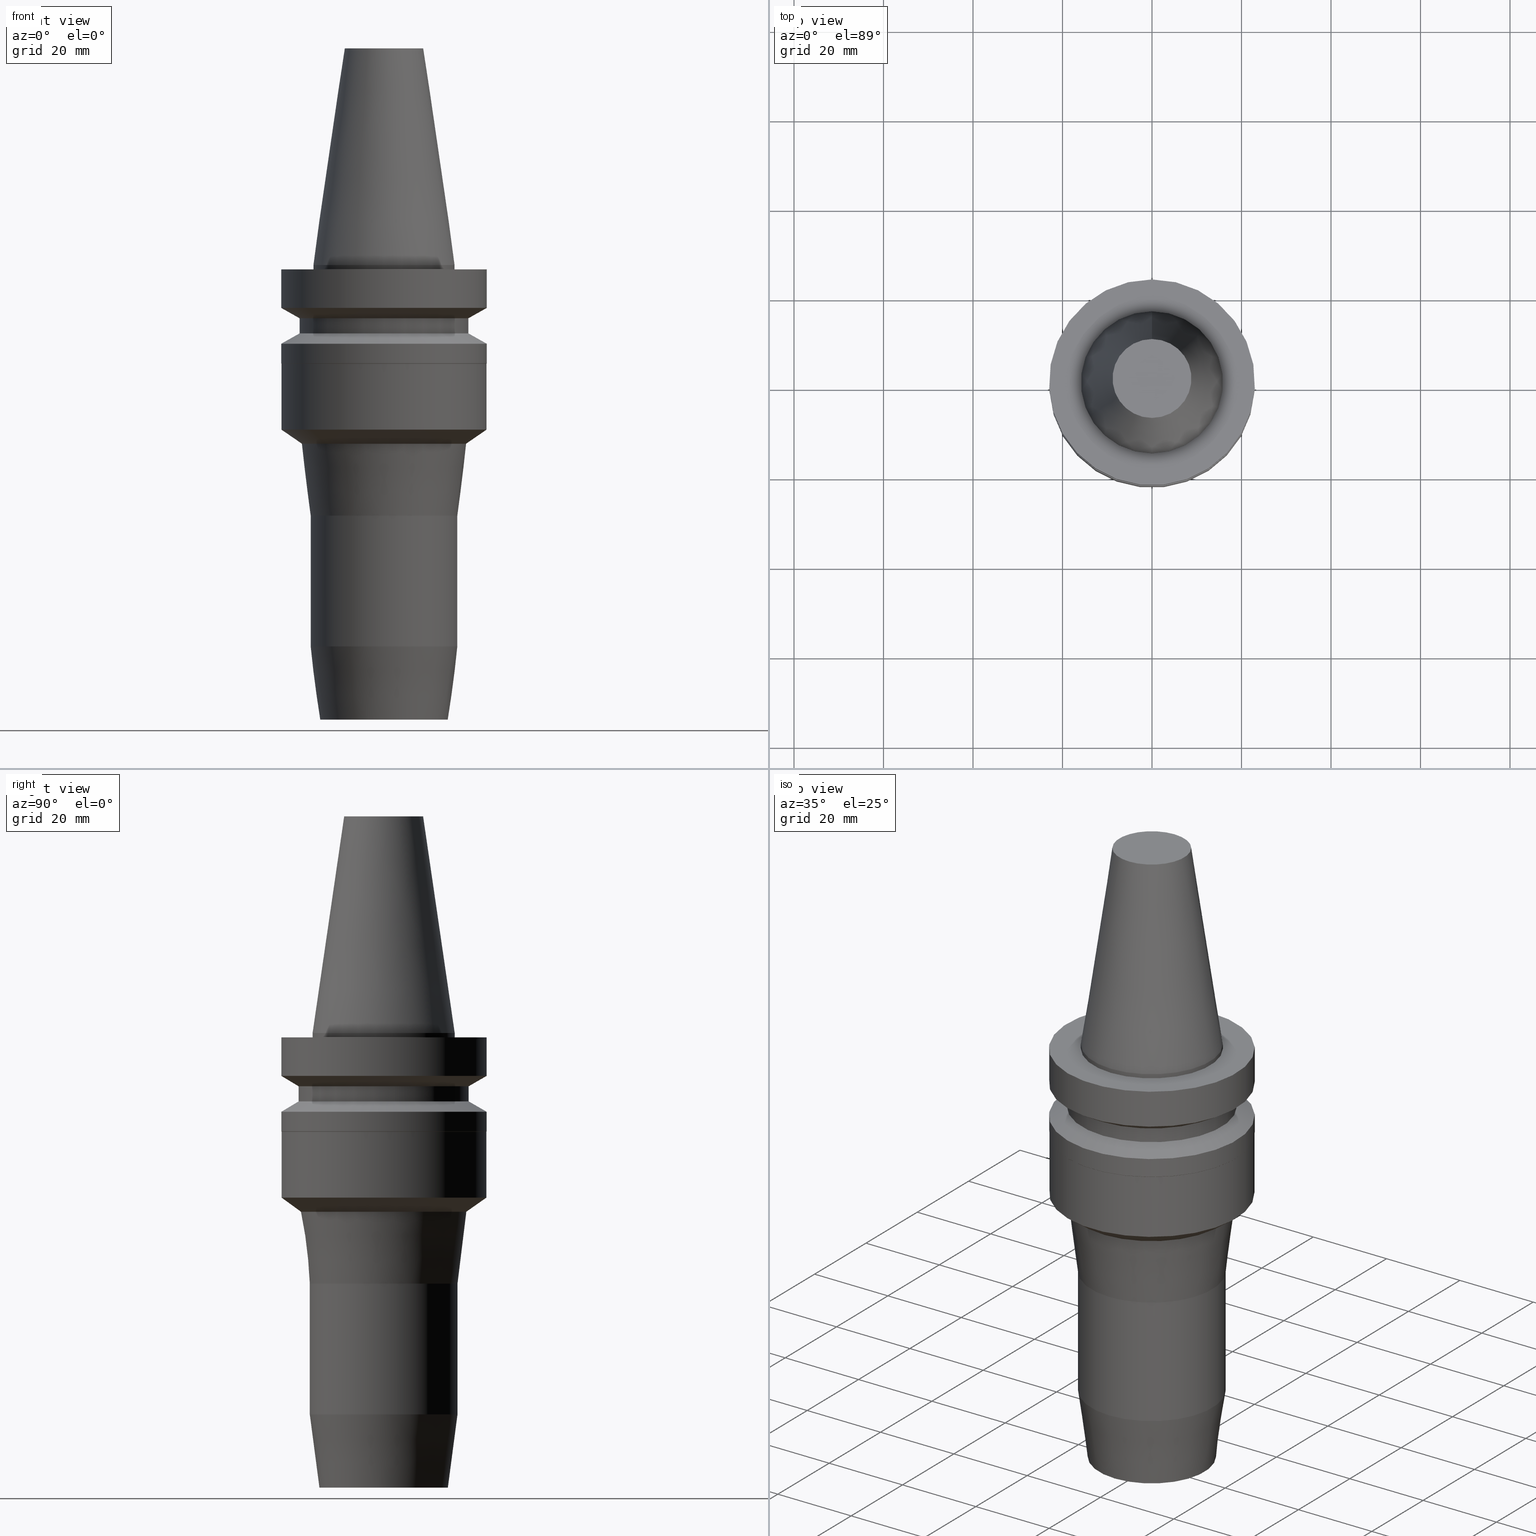
[diagram: canonical four-view strip — front | top / right | iso, engineering-drawing reading convention]
A machine part, canonical four-view strip (front | top / right | iso — engineering-drawing reading convention). The complete STEP part file that produces these views, byte-faithful:
ISO-10303-21;
HEADER;
FILE_DESCRIPTION((''),'1');
FILE_NAME('V:/90_\X2\53D65F9730C730FC30BF\X0\/00_\X2\6DE18DEF30C730FC30BF\X0\/ALL/BBT-BKUS\X2\FF76FF80FF9BFF78FF9E752852A05DE556F3\X0\201801/BBT30-HDC/BBT30-HDC.500-4.stp','2018-02-07T04:33:35',(''),(''),'Spatial Interop R21 SP3','Kubotek KeyCreator 2011 V10.0.2 (22737)',' ');
FILE_SCHEMA(('automotive_design'));
ENDSEC;
DATA;
#1=MECHANICAL_DESIGN_GEOMETRIC_PRESENTATION_REPRESENTATION(' ',(#10,#11,#12,#13,#14,#15,#16,#17,#18,#19,#20,#21,#22,#23,#24,#25,#26,#27,#28,#29,#30,#31,#32,#33,#34,#35,#36,#37,#38,#39,#40,#41),#6);
#2=PRODUCT_DEFINITION_CONTEXT('',#42,'design');
#3=APPLICATION_PROTOCOL_DEFINITION('INTERNATIONAL STANDARD','automotive_design',1994,#42);
#4=PRODUCT_CATEGORY_RELATIONSHIP('NONE','NONE',#43,#44);
#5=SHAPE_DEFINITION_REPRESENTATION(#45,#46);
#6= (GEOMETRIC_REPRESENTATION_CONTEXT(3)GLOBAL_UNCERTAINTY_ASSIGNED_CONTEXT((#49))GLOBAL_UNIT_ASSIGNED_CONTEXT((#51,#52,#53))REPRESENTATION_CONTEXT('NONE','WORKSPACE'));
#10=STYLED_ITEM('',(#55),#56);
#11=STYLED_ITEM('',(#57),#58);
#12=STYLED_ITEM('',(#59),#60);
#13=STYLED_ITEM('',(#61,#62),#63);
#14=STYLED_ITEM('',(#64),#65);
#15=STYLED_ITEM('',(#66),#67);
#16=STYLED_ITEM('',(#68),#69);
#17=STYLED_ITEM('',(#70,#71),#72);
#18=STYLED_ITEM('',(#73,#74),#75);
#19=STYLED_ITEM('',(#76),#77);
#20=STYLED_ITEM('',(#78,#79),#80);
#21=STYLED_ITEM('',(#81),#82);
#22=STYLED_ITEM('',(#83,#84),#85);
#23=STYLED_ITEM('',(#86),#87);
#24=STYLED_ITEM('',(#88,#89),#90);
#25=STYLED_ITEM('',(#91),#92);
#26=STYLED_ITEM('',(#93,#94),#95);
#27=STYLED_ITEM('',(#96,#97),#98);
#28=STYLED_ITEM('',(#99,#100),#101);
#29=STYLED_ITEM('',(#102),#103);
#30=STYLED_ITEM('',(#104,#105),#106);
#31=STYLED_ITEM('',(#107,#108),#109);
#32=STYLED_ITEM('',(#110),#111);
#33=STYLED_ITEM('',(#112,#113),#114);
#34=STYLED_ITEM('',(#115),#116);
#35=STYLED_ITEM('',(#117,#118),#119);
#36=STYLED_ITEM('',(#120),#121);
#37=STYLED_ITEM('',(#122),#123);
#38=STYLED_ITEM('',(#124,#125),#126);
#39=STYLED_ITEM('',(#127,#128),#129);
#40=STYLED_ITEM('',(#130,#131),#132);
#41=STYLED_ITEM('',(#133,#134),#135);
#42=APPLICATION_CONTEXT(' ');
#43=PRODUCT_CATEGORY('part','NONE');
#44=PRODUCT_RELATED_PRODUCT_CATEGORY('detail',' ',(#136));
#45=PRODUCT_DEFINITION_SHAPE('NONE','NONE',#137);
#46=ADVANCED_BREP_SHAPE_REPRESENTATION('Unnamed[1]',(#109,#138),#6);
#49=UNCERTAINTY_MEASURE_WITH_UNIT(LENGTH_MEASURE(1.0E-006),#51,'','');
#51= (CONVERSION_BASED_UNIT('MILLIMETRE',#141)LENGTH_UNIT()NAMED_UNIT(#144));
#52= (NAMED_UNIT(#146)PLANE_ANGLE_UNIT()SI_UNIT($,.RADIAN.));
#53= (NAMED_UNIT(#146)SOLID_ANGLE_UNIT()SI_UNIT($,.STERADIAN.));
#55=PRESENTATION_STYLE_ASSIGNMENT((#152));
#56=EDGE_CURVE('Unnamed[1]',#153,#153,#154,.T.);
#57=PRESENTATION_STYLE_ASSIGNMENT((#155));
#58=EDGE_CURVE('Unnamed[1]',#156,#156,#157,.T.);
#59=PRESENTATION_STYLE_ASSIGNMENT((#158));
#60=EDGE_CURVE('Unnamed[1]',#159,#159,#160,.T.);
#61=PRESENTATION_STYLE_ASSIGNMENT((#161));
#62=PRESENTATION_STYLE_ASSIGNMENT((#162));
#63=ADVANCED_FACE('Unnamed[1]',(#163),#164,.T.);
#64=PRESENTATION_STYLE_ASSIGNMENT((#165));
#65=EDGE_CURVE('Unnamed[1]',#166,#166,#167,.T.);
#66=PRESENTATION_STYLE_ASSIGNMENT((#168));
#67=EDGE_CURVE('Unnamed[1]',#169,#169,#170,.T.);
#68=PRESENTATION_STYLE_ASSIGNMENT((#171));
#69=EDGE_CURVE('Unnamed[1]',#172,#172,#173,.T.);
#70=PRESENTATION_STYLE_ASSIGNMENT((#174));
#71=PRESENTATION_STYLE_ASSIGNMENT((#175));
#72=ADVANCED_FACE('Unnamed[1]',(#176,#177),#178,.T.);
#73=PRESENTATION_STYLE_ASSIGNMENT((#179));
#74=PRESENTATION_STYLE_ASSIGNMENT((#180));
#75=ADVANCED_FACE('Unnamed[1]',(#181,#182),#183,.T.);
#76=PRESENTATION_STYLE_ASSIGNMENT((#184));
#77=EDGE_CURVE('Unnamed[1]',#185,#185,#186,.T.);
#78=PRESENTATION_STYLE_ASSIGNMENT((#187));
#79=PRESENTATION_STYLE_ASSIGNMENT((#188));
#80=ADVANCED_FACE('Unnamed[1]',(#189,#190),#191,.T.);
#81=PRESENTATION_STYLE_ASSIGNMENT((#192));
#82=EDGE_CURVE('Unnamed[1]',#193,#193,#194,.T.);
#83=PRESENTATION_STYLE_ASSIGNMENT((#195));
#84=PRESENTATION_STYLE_ASSIGNMENT((#196));
#85=ADVANCED_FACE('Unnamed[1]',(#197,#198),#199,.T.);
#86=PRESENTATION_STYLE_ASSIGNMENT((#200));
#87=EDGE_CURVE('Unnamed[1]',#201,#201,#202,.T.);
#88=PRESENTATION_STYLE_ASSIGNMENT((#203));
#89=PRESENTATION_STYLE_ASSIGNMENT((#204));
#90=ADVANCED_FACE('Unnamed[1]',(#205,#206),#207,.T.);
#91=PRESENTATION_STYLE_ASSIGNMENT((#208));
#92=EDGE_CURVE('Unnamed[1]',#209,#209,#210,.T.);
#93=PRESENTATION_STYLE_ASSIGNMENT((#211));
#94=PRESENTATION_STYLE_ASSIGNMENT((#212));
#95=ADVANCED_FACE('Unnamed[1]',(#213,#214),#215,.T.);
#96=PRESENTATION_STYLE_ASSIGNMENT((#216));
#97=PRESENTATION_STYLE_ASSIGNMENT((#217));
#98=ADVANCED_FACE('Unnamed[1]',(#218),#219,.T.);
#99=PRESENTATION_STYLE_ASSIGNMENT((#220));
#100=PRESENTATION_STYLE_ASSIGNMENT((#221));
#101=ADVANCED_FACE('Unnamed[1]',(#222,#223),#224,.T.);
#102=PRESENTATION_STYLE_ASSIGNMENT((#225));
#103=EDGE_CURVE('Unnamed[1]',#226,#226,#227,.T.);
#104=PRESENTATION_STYLE_ASSIGNMENT((#228));
#105=PRESENTATION_STYLE_ASSIGNMENT((#229));
#106=ADVANCED_FACE('Unnamed[1]',(#230,#231),#232,.T.);
#107=PRESENTATION_STYLE_ASSIGNMENT((#233));
#108=PRESENTATION_STYLE_ASSIGNMENT((#234));
#109=MANIFOLD_SOLID_BREP('Unnamed[1]',#235);
#110=PRESENTATION_STYLE_ASSIGNMENT((#236));
#111=EDGE_CURVE('Unnamed[1]',#237,#237,#238,.T.);
#112=PRESENTATION_STYLE_ASSIGNMENT((#239));
#113=PRESENTATION_STYLE_ASSIGNMENT((#240));
#114=ADVANCED_FACE('Unnamed[1]',(#241,#242),#243,.T.);
#115=PRESENTATION_STYLE_ASSIGNMENT((#244));
#116=EDGE_CURVE('Unnamed[1]',#245,#245,#246,.T.);
#117=PRESENTATION_STYLE_ASSIGNMENT((#247));
#118=PRESENTATION_STYLE_ASSIGNMENT((#248));
#119=ADVANCED_FACE('Unnamed[1]',(#249,#250),#251,.T.);
#120=PRESENTATION_STYLE_ASSIGNMENT((#252));
#121=EDGE_CURVE('Unnamed[1]',#253,#253,#254,.T.);
#122=PRESENTATION_STYLE_ASSIGNMENT((#255));
#123=EDGE_CURVE('Unnamed[1]',#256,#256,#257,.T.);
#124=PRESENTATION_STYLE_ASSIGNMENT((#258));
#125=PRESENTATION_STYLE_ASSIGNMENT((#259));
#126=ADVANCED_FACE('Unnamed[1]',(#260,#261),#262,.T.);
#127=PRESENTATION_STYLE_ASSIGNMENT((#263));
#128=PRESENTATION_STYLE_ASSIGNMENT((#264));
#129=ADVANCED_FACE('Unnamed[1]',(#265,#266),#267,.T.);
#130=PRESENTATION_STYLE_ASSIGNMENT((#268));
#131=PRESENTATION_STYLE_ASSIGNMENT((#269));
#132=ADVANCED_FACE('Unnamed[1]',(#270,#271),#272,.T.);
#133=PRESENTATION_STYLE_ASSIGNMENT((#273));
#134=PRESENTATION_STYLE_ASSIGNMENT((#274));
#135=ADVANCED_FACE('Unnamed[1]',(#275,#276),#277,.T.);
#136=PRODUCT('Unnamed[1]','Unnamed[1]','PART-Unnamed[1]-DESC',(#278));
#137=PRODUCT_DEFINITION('NONE','NONE',#279,#2);
#138=AXIS2_PLACEMENT_3D('',#280,#281,#282);
#141=LENGTH_MEASURE_WITH_UNIT(LENGTH_MEASURE(1.0),#283);
#144=DIMENSIONAL_EXPONENTS(1.0,0.0,0.0,0.0,0.0,0.0,0.0);
#146=DIMENSIONAL_EXPONENTS(0.0,0.0,0.0,0.0,0.0,0.0,0.0);
#152=CURVE_STYLE('',#284,POSITIVE_LENGTH_MEASURE(1000.0),#285);
#153=VERTEX_POINT('',#286);
#154=CIRCLE('',#287,16.5000000000001);
#155=CURVE_STYLE('',#288,POSITIVE_LENGTH_MEASURE(1000.0),#289);
#156=VERTEX_POINT('',#290);
#157=CIRCLE('',#291,16.4999999999999);
#158=CURVE_STYLE('',#292,POSITIVE_LENGTH_MEASURE(1000.0),#293);
#159=VERTEX_POINT('',#294);
#160=CIRCLE('',#295,18.4744259401968);
#161=SURFACE_STYLE_USAGE(.BOTH.,#296);
#162=CURVE_STYLE('',#297,POSITIVE_LENGTH_MEASURE(1000.0),#298);
#163=FACE_OUTER_BOUND('',#299,.T.);
#164=PLANE('',#300);
#165=CURVE_STYLE('',#301,POSITIVE_LENGTH_MEASURE(1000.0),#302);
#166=VERTEX_POINT('',#303);
#167=CIRCLE('',#304,23.0);
#168=CURVE_STYLE('',#305,POSITIVE_LENGTH_MEASURE(1000.0),#306);
#169=VERTEX_POINT('',#307);
#170=CIRCLE('',#308,23.0);
#171=CURVE_STYLE('',#309,POSITIVE_LENGTH_MEASURE(1000.0),#310);
#172=VERTEX_POINT('',#311);
#173=CIRCLE('',#312,23.0);
#174=SURFACE_STYLE_USAGE(.BOTH.,#313);
#175=CURVE_STYLE('',#314,POSITIVE_LENGTH_MEASURE(1000.0),#315);
#176=FACE_BOUND('',#316,.T.);
#177=FACE_BOUND('',#317,.T.);
#178=CYLINDRICAL_SURFACE('',#318,15.875);
#179=SURFACE_STYLE_USAGE(.BOTH.,#319);
#180=CURVE_STYLE('',#320,POSITIVE_LENGTH_MEASURE(1000.0),#321);
#181=FACE_BOUND('',#322,.T.);
#182=FACE_BOUND('',#323,.T.);
#183=CYLINDRICAL_SURFACE('',#324,19.0);
#184=CURVE_STYLE('',#325,POSITIVE_LENGTH_MEASURE(1000.0),#326);
#185=VERTEX_POINT('',#327);
#186=CIRCLE('',#328,19.0);
#187=SURFACE_STYLE_USAGE(.BOTH.,#329);
#188=CURVE_STYLE('',#330,POSITIVE_LENGTH_MEASURE(1000.0),#331);
#189=FACE_BOUND('',#332,.T.);
#190=FACE_BOUND('',#333,.T.);
#191=CONICAL_SURFACE('',#334,20.7122129700984,0.958768533756309);
#192=CURVE_STYLE('',#335,POSITIVE_LENGTH_MEASURE(1000.0),#336);
#193=VERTEX_POINT('',#337);
#194=CIRCLE('',#338,23.0);
#195=SURFACE_STYLE_USAGE(.BOTH.,#339);
#196=CURVE_STYLE('',#340,POSITIVE_LENGTH_MEASURE(1000.0),#341);
#197=FACE_BOUND('',#342,.T.);
#198=FACE_BOUND('',#343,.T.);
#199=CONICAL_SURFACE('',#344,12.3457500009933,0.144815870013618);
#200=CURVE_STYLE('',#345,POSITIVE_LENGTH_MEASURE(1000.0),#346);
#201=VERTEX_POINT('',#347);
#202=CIRCLE('',#348,19.0);
#203=SURFACE_STYLE_USAGE(.BOTH.,#349);
#204=CURVE_STYLE('',#350,POSITIVE_LENGTH_MEASURE(1000.0),#351);
#205=FACE_BOUND('',#352,.T.);
#206=FACE_BOUND('',#353,.T.);
#207=CONICAL_SURFACE('',#354,15.4226826777204,0.130899693899549);
#208=CURVE_STYLE('',#355,POSITIVE_LENGTH_MEASURE(1000.0),#356);
#209=VERTEX_POINT('',#357);
#210=CIRCLE('',#358,22.95);
#211=SURFACE_STYLE_USAGE(.BOTH.,#359);
#212=CURVE_STYLE('',#360,POSITIVE_LENGTH_MEASURE(1000.0),#361);
#213=FACE_BOUND('',#362,.T.);
#214=FACE_BOUND('',#363,.T.);
#215=CYLINDRICAL_SURFACE('',#364,23.0);
#216=SURFACE_STYLE_USAGE(.BOTH.,#365);
#217=CURVE_STYLE('',#366,POSITIVE_LENGTH_MEASURE(1000.0),#367);
#218=FACE_OUTER_BOUND('',#368,.T.);
#219=PLANE('',#369);
#220=SURFACE_STYLE_USAGE(.BOTH.,#370);
#221=CURVE_STYLE('',#371,POSITIVE_LENGTH_MEASURE(1000.0),#372);
#222=FACE_BOUND('',#373,.T.);
#223=FACE_BOUND('',#374,.T.);
#224=CONICAL_SURFACE('',#375,22.975,0.785398163397164);
#225=CURVE_STYLE('',#376,POSITIVE_LENGTH_MEASURE(1000.0),#377);
#226=VERTEX_POINT('',#378);
#227=CIRCLE('',#379,15.875);
#228=SURFACE_STYLE_USAGE(.BOTH.,#380);
#229=CURVE_STYLE('',#381,POSITIVE_LENGTH_MEASURE(1000.0),#382);
#230=FACE_BOUND('',#383,.T.);
#231=FACE_BOUND('',#384,.T.);
#232=CYLINDRICAL_SURFACE('',#385,23.0);
#233=SURFACE_STYLE_USAGE(.BOTH.,#386);
#234=CURVE_STYLE('',#387,POSITIVE_LENGTH_MEASURE(1000.0),#388);
#235=CLOSED_SHELL('',(#98,#85,#72,#135,#95,#126,#75,#132,#106,#101,#129,#80,#119,#114,#90,#63));
#236=CURVE_STYLE('',#389,POSITIVE_LENGTH_MEASURE(1000.0),#390);
#237=VERTEX_POINT('',#391);
#238=CIRCLE('',#392,8.81650000198669);
#239=SURFACE_STYLE_USAGE(.BOTH.,#393);
#240=CURVE_STYLE('',#394,POSITIVE_LENGTH_MEASURE(1000.0),#395);
#241=FACE_BOUND('',#396,.T.);
#242=FACE_BOUND('',#397,.T.);
#243=CYLINDRICAL_SURFACE('',#398,16.5);
#244=CURVE_STYLE('',#399,POSITIVE_LENGTH_MEASURE(1000.0),#400);
#245=VERTEX_POINT('',#401);
#246=CIRCLE('',#402,22.95);
#247=SURFACE_STYLE_USAGE(.BOTH.,#403);
#248=CURVE_STYLE('',#404,POSITIVE_LENGTH_MEASURE(1000.0),#405);
#249=FACE_BOUND('',#406,.T.);
#250=FACE_BOUND('',#407,.T.);
#251=CONICAL_SURFACE('',#408,17.4872129700983,0.122173047639588);
#252=CURVE_STYLE('',#409,POSITIVE_LENGTH_MEASURE(1000.0),#410);
#253=VERTEX_POINT('',#411);
#254=CIRCLE('',#412,15.875);
#255=CURVE_STYLE('',#413,POSITIVE_LENGTH_MEASURE(1000.0),#414);
#256=VERTEX_POINT('',#415);
#257=CIRCLE('',#416,14.3453653554407);
#258=SURFACE_STYLE_USAGE(.BOTH.,#417);
#259=CURVE_STYLE('',#418,POSITIVE_LENGTH_MEASURE(1000.0),#419);
#260=FACE_BOUND('',#420,.T.);
#261=FACE_BOUND('',#421,.T.);
#262=CONICAL_SURFACE('',#422,21.0,1.04719755058881);
#263=SURFACE_STYLE_USAGE(.BOTH.,#423);
#264=CURVE_STYLE('',#424,POSITIVE_LENGTH_MEASURE(1000.0),#425);
#265=FACE_BOUND('',#426,.T.);
#266=FACE_BOUND('',#427,.T.);
#267=CYLINDRICAL_SURFACE('',#428,22.95);
#268=SURFACE_STYLE_USAGE(.BOTH.,#429);
#269=CURVE_STYLE('',#430,POSITIVE_LENGTH_MEASURE(1000.0),#431);
#270=FACE_BOUND('',#432,.T.);
#271=FACE_BOUND('',#433,.T.);
#272=CONICAL_SURFACE('',#434,21.0,1.04719755058882);
#273=SURFACE_STYLE_USAGE(.BOTH.,#435);
#274=CURVE_STYLE('',#436,POSITIVE_LENGTH_MEASURE(1000.0),#437);
#275=FACE_OUTER_BOUND('',#438,.T.);
#276=FACE_BOUND('',#439,.T.);
#277=PLANE('',#440);
#278=PRODUCT_CONTEXT('',#42,'mechanical');
#279=PRODUCT_DEFINITION_FORMATION_WITH_SPECIFIED_SOURCE(' ','NONE',#136,.NOT_KNOWN.);
#280=CARTESIAN_POINT('',(0.0,0.0,0.0));
#281=DIRECTION('',(0.0,0.0,1.0));
#282=DIRECTION('',(1.0,0.0,0.0));
#283= (NAMED_UNIT(#144)LENGTH_UNIT()SI_UNIT(.MILLI.,.METRE.));
#284=DRAUGHTING_PRE_DEFINED_CURVE_FONT('continuous');
#285=COLOUR_RGB('',0.0,1.0,0.0);
#286=CARTESIAN_POINT('',(5.2190726737765E-015,16.5000000000001,-85.2339250371654));
#287=AXIS2_PLACEMENT_3D('',#442,#443,#444);
#288=DRAUGHTING_PRE_DEFINED_CURVE_FONT('continuous');
#289=COLOUR_RGB('',0.0,1.0,0.0);
#290=CARTESIAN_POINT('',(3.4303581490918E-015,16.4999999999999,-56.0220000000024));
#291=AXIS2_PLACEMENT_3D('',#445,#446,#447);
#292=DRAUGHTING_PRE_DEFINED_CURVE_FONT('continuous');
#293=COLOUR_RGB('',0.0,1.0,0.0);
#294=CARTESIAN_POINT('',(2.44571708753031E-015,18.4744259401968,-39.9415911466573));
#295=AXIS2_PLACEMENT_3D('',#448,#449,#450);
#296=SURFACE_SIDE_STYLE('',(#451));
#297=DRAUGHTING_PRE_DEFINED_CURVE_FONT('continuous');
#298=COLOUR_RGB('',0.0,1.0,0.0);
#299=EDGE_LOOP('',(#452));
#300=AXIS2_PLACEMENT_3D('',#453,#454,#455);
#301=DRAUGHTING_PRE_DEFINED_CURVE_FONT('continuous');
#302=COLOUR_RGB('',0.0,1.0,0.0);
#303=CARTESIAN_POINT('',(1.07768918324967E-015,23.0,-17.6));
#304=AXIS2_PLACEMENT_3D('',#456,#457,#458);
#305=DRAUGHTING_PRE_DEFINED_CURVE_FONT('continuous');
#306=COLOUR_RGB('',0.0,1.0,0.0);
#307=CARTESIAN_POINT('',(1.34711147906216E-015,23.0,-22.0000000000012));
#308=AXIS2_PLACEMENT_3D('',#459,#460,#461);
#309=DRAUGHTING_PRE_DEFINED_CURVE_FONT('continuous');
#310=COLOUR_RGB('',0.0,1.0,0.0);
#311=CARTESIAN_POINT('',(6.12323399573674E-017,23.0,-0.999999999999997));
#312=AXIS2_PLACEMENT_3D('',#462,#463,#464);
#313=SURFACE_SIDE_STYLE('',(#465));
#314=DRAUGHTING_PRE_DEFINED_CURVE_FONT('continuous');
#315=COLOUR_RGB('',0.0,1.0,0.0);
#316=EDGE_LOOP('',(#466));
#317=EDGE_LOOP('',(#467));
#318=AXIS2_PLACEMENT_3D('',#468,#469,#470);
#319=SURFACE_SIDE_STYLE('',(#471));
#320=DRAUGHTING_PRE_DEFINED_CURVE_FONT('continuous');
#321=COLOUR_RGB('',0.0,1.0,0.0);
#322=EDGE_LOOP('',(#472));
#323=EDGE_LOOP('',(#473));
#324=AXIS2_PLACEMENT_3D('',#474,#475,#476);
#325=DRAUGHTING_PRE_DEFINED_CURVE_FONT('continuous');
#326=COLOUR_RGB('',0.0,1.0,0.0);
#327=CARTESIAN_POINT('',(9.36279151221199E-016,19.0,-15.29059892));
#328=AXIS2_PLACEMENT_3D('',#477,#478,#479);
#329=SURFACE_SIDE_STYLE('',(#480));
#330=DRAUGHTING_PRE_DEFINED_CURVE_FONT('continuous');
#331=COLOUR_RGB('',0.0,1.0,0.0);
#332=EDGE_LOOP('',(#481));
#333=EDGE_LOOP('',(#482));
#334=AXIS2_PLACEMENT_3D('',#483,#484,#485);
#335=DRAUGHTING_PRE_DEFINED_CURVE_FONT('continuous');
#336=COLOUR_RGB('',0.0,1.0,0.0);
#337=CARTESIAN_POINT('',(5.87830463590729E-016,23.0,-9.59999999999999));
#338=AXIS2_PLACEMENT_3D('',#486,#487,#488);
#339=SURFACE_SIDE_STYLE('',(#489));
#340=DRAUGHTING_PRE_DEFINED_CURVE_FONT('continuous');
#341=COLOUR_RGB('',0.0,1.0,0.0);
#342=EDGE_LOOP('',(#490));
#343=EDGE_LOOP('',(#491));
#344=AXIS2_PLACEMENT_3D('',#492,#493,#494);
#345=DRAUGHTING_PRE_DEFINED_CURVE_FONT('continuous');
#346=COLOUR_RGB('',0.0,1.0,0.0);
#347=CARTESIAN_POINT('',(7.29240495619202E-016,19.0,-11.90940108));
#348=AXIS2_PLACEMENT_3D('',#495,#496,#497);
#349=SURFACE_SIDE_STYLE('',(#498));
#350=DRAUGHTING_PRE_DEFINED_CURVE_FONT('continuous');
#351=COLOUR_RGB('',0.0,1.0,0.0);
#352=EDGE_LOOP('',(#499));
#353=EDGE_LOOP('',(#500));
#354=AXIS2_PLACEMENT_3D('',#501,#502,#503);
#355=DRAUGHTING_PRE_DEFINED_CURVE_FONT('continuous');
#356=COLOUR_RGB('',0.0,1.0,0.0);
#357=CARTESIAN_POINT('',(2.25335011043121E-015,22.95,-36.8000000000013));
#358=AXIS2_PLACEMENT_3D('',#504,#505,#506);
#359=SURFACE_SIDE_STYLE('',(#507));
#360=DRAUGHTING_PRE_DEFINED_CURVE_FONT('continuous');
#361=COLOUR_RGB('',0.0,1.0,0.0);
#362=EDGE_LOOP('',(#508));
#363=EDGE_LOOP('',(#509));
#364=AXIS2_PLACEMENT_3D('',#510,#511,#512);
#365=SURFACE_SIDE_STYLE('',(#513));
#366=DRAUGHTING_PRE_DEFINED_CURVE_FONT('continuous');
#367=COLOUR_RGB('',0.0,1.0,0.0);
#368=EDGE_LOOP('',(#514));
#369=AXIS2_PLACEMENT_3D('',#515,#516,#517);
#370=SURFACE_SIDE_STYLE('',(#518));
#371=DRAUGHTING_PRE_DEFINED_CURVE_FONT('continuous');
#372=COLOUR_RGB('',0.0,1.0,0.0);
#373=EDGE_LOOP('',(#519));
#374=EDGE_LOOP('',(#520));
#375=AXIS2_PLACEMENT_3D('',#521,#522,#523);
#376=DRAUGHTING_PRE_DEFINED_CURVE_FONT('continuous');
#377=COLOUR_RGB('',0.0,1.0,0.0);
#378=CARTESIAN_POINT('',(6.12323399573675E-017,15.875,-0.999999999999998));
#379=AXIS2_PLACEMENT_3D('',#524,#525,#526);
#380=SURFACE_SIDE_STYLE('',(#527));
#381=DRAUGHTING_PRE_DEFINED_CURVE_FONT('continuous');
#382=COLOUR_RGB('',0.0,1.0,0.0);
#383=EDGE_LOOP('',(#528));
#384=EDGE_LOOP('',(#529));
#385=AXIS2_PLACEMENT_3D('',#530,#531,#532);
#386=SURFACE_SIDE_STYLE('',(#533));
#387=DRAUGHTING_PRE_DEFINED_CURVE_FONT('continuous');
#388=COLOUR_RGB('',0.0,1.0,0.0);
#389=DRAUGHTING_PRE_DEFINED_CURVE_FONT('continuous');
#390=COLOUR_RGB('',0.0,1.0,0.0);
#391=CARTESIAN_POINT('',(-2.96364525393659E-015,8.81650000198669,48.4));
#392=AXIS2_PLACEMENT_3D('',#534,#535,#536);
#393=SURFACE_SIDE_STYLE('',(#537));
#394=DRAUGHTING_PRE_DEFINED_CURVE_FONT('continuous');
#395=COLOUR_RGB('',0.0,1.0,0.0);
#396=EDGE_LOOP('',(#538));
#397=EDGE_LOOP('',(#539));
#398=AXIS2_PLACEMENT_3D('',#540,#541,#542);
#399=DRAUGHTING_PRE_DEFINED_CURVE_FONT('continuous');
#400=COLOUR_RGB('',0.0,1.0,0.0);
#401=CARTESIAN_POINT('',(1.35017309606003E-015,22.95,-22.0500000000013));
#402=AXIS2_PLACEMENT_3D('',#543,#544,#545);
#403=SURFACE_SIDE_STYLE('',(#546));
#404=DRAUGHTING_PRE_DEFINED_CURVE_FONT('continuous');
#405=COLOUR_RGB('',0.0,1.0,0.0);
#406=EDGE_LOOP('',(#547));
#407=EDGE_LOOP('',(#548));
#408=AXIS2_PLACEMENT_3D('',#549,#550,#551);
#409=DRAUGHTING_PRE_DEFINED_CURVE_FONT('continuous');
#410=COLOUR_RGB('',0.0,1.0,0.0);
#411=CARTESIAN_POINT('',(-1.95674482349743E-031,15.875,1.94412679364642E-015));
#412=AXIS2_PLACEMENT_3D('',#552,#553,#554);
#413=DRAUGHTING_PRE_DEFINED_CURVE_FONT('continuous');
#414=COLOUR_RGB('',0.0,1.0,0.0);
#415=CARTESIAN_POINT('',(6.22120573966861E-015,14.3453653554407,-101.600000000001));
#416=AXIS2_PLACEMENT_3D('',#555,#556,#557);
#417=SURFACE_SIDE_STYLE('',(#558));
#418=DRAUGHTING_PRE_DEFINED_CURVE_FONT('continuous');
#419=COLOUR_RGB('',0.0,1.0,0.0);
#420=EDGE_LOOP('',(#559));
#421=EDGE_LOOP('',(#560));
#422=AXIS2_PLACEMENT_3D('',#561,#562,#563);
#423=SURFACE_SIDE_STYLE('',(#564));
#424=DRAUGHTING_PRE_DEFINED_CURVE_FONT('continuous');
#425=COLOUR_RGB('',0.0,1.0,0.0);
#426=EDGE_LOOP('',(#565));
#427=EDGE_LOOP('',(#566));
#428=AXIS2_PLACEMENT_3D('',#567,#568,#569);
#429=SURFACE_SIDE_STYLE('',(#570));
#430=DRAUGHTING_PRE_DEFINED_CURVE_FONT('continuous');
#431=COLOUR_RGB('',0.0,1.0,0.0);
#432=EDGE_LOOP('',(#571));
#433=EDGE_LOOP('',(#572));
#434=AXIS2_PLACEMENT_3D('',#573,#574,#575);
#435=SURFACE_SIDE_STYLE('',(#576));
#436=DRAUGHTING_PRE_DEFINED_CURVE_FONT('continuous');
#437=COLOUR_RGB('',0.0,1.0,0.0);
#438=EDGE_LOOP('',(#577));
#439=EDGE_LOOP('',(#578));
#440=AXIS2_PLACEMENT_3D('',#579,#580,#581);
#442=CARTESIAN_POINT('',(5.2190726737765E-015,1.0438145347553E-014,-85.2339250371654));
#443=DIRECTION('',(6.12323399573677E-017,1.22464679914735E-016,-1.0));
#444=DIRECTION('',(-1.23259516440783E-032,1.0,1.22464679914735E-016));
#445=CARTESIAN_POINT('',(3.4303581490918E-015,6.86071629818359E-015,-56.0220000000024));
#446=DIRECTION('',(6.12323399573677E-017,1.22464679914735E-016,-1.0));
#447=DIRECTION('',(-1.23259516440783E-032,1.0,1.22464679914735E-016));
#448=CARTESIAN_POINT('',(2.44571708753031E-015,4.89143417506061E-015,-39.9415911466573));
#449=DIRECTION('',(6.12323399573677E-017,1.22464679914735E-016,-1.0));
#450=DIRECTION('',(-1.23259516440783E-032,1.0,1.22464679914735E-016));
#451=SURFACE_STYLE_FILL_AREA(#582);
#452=ORIENTED_EDGE('',*,*,#123,.T.);
#453=CARTESIAN_POINT('',(6.22120573966862E-015,7.17268267772035,-101.600000000001));
#454=DIRECTION('',(6.12323399573677E-017,1.39911923897582E-014,-1.0));
#455=DIRECTION('',(-8.61540601549376E-031,1.0,1.39911923897582E-014));
#456=CARTESIAN_POINT('',(1.07768918324967E-015,2.15537836649934E-015,-17.6));
#457=DIRECTION('',(6.12323399573677E-017,1.22464679914735E-016,-1.0));
#458=DIRECTION('',(-1.23259516440783E-032,1.0,1.22464679914735E-016));
#459=CARTESIAN_POINT('',(1.34711147906216E-015,2.69422295812433E-015,-22.0000000000012));
#460=DIRECTION('',(6.12323399573677E-017,1.22464679914735E-016,-1.0));
#461=DIRECTION('',(-1.23259516440783E-032,1.0,1.22464679914735E-016));
#462=CARTESIAN_POINT('',(6.12323399573677E-017,1.22464679914735E-016,-1.0));
#463=DIRECTION('',(6.12323399573677E-017,1.22464679914735E-016,-1.0));
#464=DIRECTION('',(-1.23259516440783E-032,1.0,1.22464679914735E-016));
#465=SURFACE_STYLE_FILL_AREA(#583);
#466=ORIENTED_EDGE('',*,*,#103,.F.);
#467=ORIENTED_EDGE('',*,*,#121,.T.);
#468=CARTESIAN_POINT('',(3.06161699786838E-017,6.12323399573676E-017,-0.5));
#469=DIRECTION('',(6.12323399573677E-017,1.22464679914735E-016,-1.0));
#470=DIRECTION('',(-1.23259516440783E-032,1.0,1.22464679914735E-016));
#471=SURFACE_STYLE_FILL_AREA(#584);
#472=ORIENTED_EDGE('',*,*,#77,.F.);
#473=ORIENTED_EDGE('',*,*,#87,.T.);
#474=CARTESIAN_POINT('',(8.32759823420201E-016,1.6655196468404E-015,-13.6));
#475=DIRECTION('',(6.12323399573677E-017,1.22464679914735E-016,-1.0));
#476=DIRECTION('',(-1.23259516440783E-032,1.0,1.22464679914735E-016));
#477=CARTESIAN_POINT('',(9.36279151221199E-016,1.8725583024424E-015,-15.29059892));
#478=DIRECTION('',(6.12323399573677E-017,1.22464679914735E-016,-1.0));
#479=DIRECTION('',(-1.23259516440783E-032,1.0,1.22464679914735E-016));
#480=SURFACE_STYLE_FILL_AREA(#585);
#481=ORIENTED_EDGE('',*,*,#60,.F.);
#482=ORIENTED_EDGE('',*,*,#92,.T.);
#483=CARTESIAN_POINT('',(2.34953359898076E-015,4.69906719796152E-015,-38.3707955733293));
#484=DIRECTION('',(-6.12323399573677E-017,-1.22464679914735E-016,1.0));
#485=DIRECTION('',(-1.23259516440783E-032,1.0,1.22464679914735E-016));
#486=CARTESIAN_POINT('',(5.87830463590729E-016,1.17566092718146E-015,-9.59999999999999));
#487=DIRECTION('',(6.12323399573677E-017,1.22464679914735E-016,-1.0));
#488=DIRECTION('',(-1.23259516440783E-032,1.0,1.22464679914735E-016));
#489=SURFACE_STYLE_FILL_AREA(#586);
#490=ORIENTED_EDGE('',*,*,#121,.F.);
#491=ORIENTED_EDGE('',*,*,#111,.T.);
#492=CARTESIAN_POINT('',(-1.4818226269683E-015,-2.96364525393659E-015,24.2));
#493=DIRECTION('',(6.12323399573677E-017,1.22464679914735E-016,-1.0));
#494=DIRECTION('',(-1.23259516440783E-032,1.0,1.22464679914735E-016));
#495=CARTESIAN_POINT('',(7.29240495619202E-016,1.4584809912384E-015,-11.90940108));
#496=DIRECTION('',(6.12323399573677E-017,1.22464679914735E-016,-1.0));
#497=DIRECTION('',(-1.23259516440783E-032,1.0,1.22464679914735E-016));
#498=SURFACE_STYLE_FILL_AREA(#587);
#499=ORIENTED_EDGE('',*,*,#123,.F.);
#500=ORIENTED_EDGE('',*,*,#56,.T.);
#501=CARTESIAN_POINT('',(5.72013920672256E-015,1.14402784134451E-014,-93.4169625185831));
#502=DIRECTION('',(-6.12323399573676E-017,-1.22464679914735E-016,1.0));
#503=DIRECTION('',(-1.23259516440783E-032,1.0,1.22464679914735E-016));
#504=CARTESIAN_POINT('',(2.25335011043121E-015,4.50670022086242E-015,-36.8000000000013));
#505=DIRECTION('',(6.12323399573677E-017,1.22464679914735E-016,-1.0));
#506=DIRECTION('',(-1.23259516440783E-032,1.0,1.22464679914735E-016));
#507=SURFACE_STYLE_FILL_AREA(#588);
#508=ORIENTED_EDGE('',*,*,#82,.F.);
#509=ORIENTED_EDGE('',*,*,#69,.T.);
#510=CARTESIAN_POINT('',(3.24531401774048E-016,6.49062803548097E-016,-5.3));
#511=DIRECTION('',(6.12323399573677E-017,1.22464679914735E-016,-1.0));
#512=DIRECTION('',(-1.23259516440783E-032,1.0,1.22464679914735E-016));
#513=SURFACE_STYLE_FILL_AREA(#589);
#514=ORIENTED_EDGE('',*,*,#111,.F.);
#515=CARTESIAN_POINT('',(-2.96364525393659E-015,4.40825000099334,48.4));
#516=DIRECTION('',(-6.12323399573677E-017,-1.22464679914735E-016,1.0));
#517=DIRECTION('',(1.23259516440783E-032,-1.0,-1.22464679914735E-016));
#518=SURFACE_STYLE_FILL_AREA(#590);
#519=ORIENTED_EDGE('',*,*,#116,.F.);
#520=ORIENTED_EDGE('',*,*,#67,.T.);
#521=CARTESIAN_POINT('',(1.3486422875611E-015,2.6972845751222E-015,-22.0250000000013));
#522=DIRECTION('',(-6.12323399573677E-017,-1.22464679914735E-016,1.0));
#523=DIRECTION('',(-1.23259516440783E-032,1.0,1.22464679914735E-016));
#524=CARTESIAN_POINT('',(6.12323399573677E-017,1.22464679914735E-016,-1.0));
#525=DIRECTION('',(6.12323399573677E-017,1.22464679914735E-016,-1.0));
#526=DIRECTION('',(-1.23259516440783E-032,1.0,1.22464679914735E-016));
#527=SURFACE_STYLE_FILL_AREA(#591);
#528=ORIENTED_EDGE('',*,*,#67,.F.);
#529=ORIENTED_EDGE('',*,*,#65,.T.);
#530=CARTESIAN_POINT('',(1.21240033115592E-015,2.42480066231183E-015,-19.8000000000006));
#531=DIRECTION('',(6.12323399573677E-017,1.22464679914735E-016,-1.0));
#532=DIRECTION('',(-1.23259516440783E-032,1.0,1.22464679914735E-016));
#533=SURFACE_STYLE_FILL_AREA(#592);
#534=CARTESIAN_POINT('',(-2.96364525393659E-015,-5.92729050787319E-015,48.4));
#535=DIRECTION('',(6.12323399573677E-017,1.22464679914735E-016,-1.0));
#536=DIRECTION('',(-1.23259516440783E-032,1.0,1.22464679914735E-016));
#537=SURFACE_STYLE_FILL_AREA(#593);
#538=ORIENTED_EDGE('',*,*,#56,.F.);
#539=ORIENTED_EDGE('',*,*,#58,.T.);
#540=CARTESIAN_POINT('',(4.32471541143415E-015,8.64943082286829E-015,-70.6279625185839));
#541=DIRECTION('',(6.12323399573677E-017,1.22464679914735E-016,-1.0));
#542=DIRECTION('',(-1.23259516440783E-032,1.0,1.22464679914735E-016));
#543=CARTESIAN_POINT('',(1.35017309606003E-015,2.70034619212007E-015,-22.0500000000013));
#544=DIRECTION('',(6.12323399573677E-017,1.22464679914735E-016,-1.0));
#545=DIRECTION('',(-1.23259516440783E-032,1.0,1.22464679914735E-016));
#546=SURFACE_STYLE_FILL_AREA(#594);
#547=ORIENTED_EDGE('',*,*,#58,.F.);
#548=ORIENTED_EDGE('',*,*,#60,.T.);
#549=CARTESIAN_POINT('',(2.93803761831105E-015,5.8760752366221E-015,-47.9817955733298));
#550=DIRECTION('',(-6.12323399573677E-017,-1.22464679914735E-016,1.0));
#551=DIRECTION('',(-1.23259516440783E-032,1.0,1.22464679914735E-016));
#552=CARTESIAN_POINT('',(0.0,0.0,0.0));
#553=DIRECTION('',(6.12323399573677E-017,1.22464679914735E-016,-1.0));
#554=DIRECTION('',(-1.23259516440783E-032,1.0,1.22464679914735E-016));
#555=CARTESIAN_POINT('',(6.22120573966861E-015,1.24424114793372E-014,-101.600000000001));
#556=DIRECTION('',(6.12323399573677E-017,1.22464679914735E-016,-1.0));
#557=DIRECTION('',(-1.23259516440783E-032,1.0,1.22464679914735E-016));
#558=SURFACE_STYLE_FILL_AREA(#595);
#559=ORIENTED_EDGE('',*,*,#87,.F.);
#560=ORIENTED_EDGE('',*,*,#82,.T.);
#561=CARTESIAN_POINT('',(6.58535479604966E-016,1.31707095920993E-015,-10.75470054));
#562=DIRECTION('',(-6.12323399573677E-017,-1.22464679914735E-016,1.0));
#563=DIRECTION('',(-1.23259516440783E-032,1.0,1.22464679914735E-016));
#564=SURFACE_STYLE_FILL_AREA(#596);
#565=ORIENTED_EDGE('',*,*,#92,.F.);
#566=ORIENTED_EDGE('',*,*,#116,.T.);
#567=CARTESIAN_POINT('',(1.80176160324562E-015,3.60352320649124E-015,-29.4250000000013));
#568=DIRECTION('',(6.12323399573677E-017,1.22464679914735E-016,-1.0));
#569=DIRECTION('',(-1.23259516440783E-032,1.0,1.22464679914735E-016));
#570=SURFACE_STYLE_FILL_AREA(#597);
#571=ORIENTED_EDGE('',*,*,#65,.F.);
#572=ORIENTED_EDGE('',*,*,#77,.T.);
#573=CARTESIAN_POINT('',(1.00698416723543E-015,2.01396833447087E-015,-16.44529946));
#574=DIRECTION('',(6.12323399573677E-017,1.22464679914735E-016,-1.0));
#575=DIRECTION('',(-1.23259516440783E-032,1.0,1.22464679914735E-016));
#576=SURFACE_STYLE_FILL_AREA(#598);
#577=ORIENTED_EDGE('',*,*,#69,.F.);
#578=ORIENTED_EDGE('',*,*,#103,.T.);
#579=CARTESIAN_POINT('',(6.12323399573674E-017,19.4375,-0.999999999999998));
#580=DIRECTION('',(-6.12323399573677E-017,-1.22464679914735E-016,1.0));
#581=DIRECTION('',(1.23259516440783E-032,-1.0,-1.22464679914735E-016));
#582=FILL_AREA_STYLE('',(#599));
#583=FILL_AREA_STYLE('',(#600));
#584=FILL_AREA_STYLE('',(#601));
#585=FILL_AREA_STYLE('',(#602));
#586=FILL_AREA_STYLE('',(#603));
#587=FILL_AREA_STYLE('',(#604));
#588=FILL_AREA_STYLE('',(#605));
#589=FILL_AREA_STYLE('',(#606));
#590=FILL_AREA_STYLE('',(#607));
#591=FILL_AREA_STYLE('',(#608));
#592=FILL_AREA_STYLE('',(#609));
#593=FILL_AREA_STYLE('',(#610));
#594=FILL_AREA_STYLE('',(#611));
#595=FILL_AREA_STYLE('',(#612));
#596=FILL_AREA_STYLE('',(#613));
#597=FILL_AREA_STYLE('',(#614));
#598=FILL_AREA_STYLE('',(#615));
#599=FILL_AREA_STYLE_COLOUR('',#616);
#600=FILL_AREA_STYLE_COLOUR('',#617);
#601=FILL_AREA_STYLE_COLOUR('',#618);
#602=FILL_AREA_STYLE_COLOUR('',#619);
#603=FILL_AREA_STYLE_COLOUR('',#620);
#604=FILL_AREA_STYLE_COLOUR('',#621);
#605=FILL_AREA_STYLE_COLOUR('',#622);
#606=FILL_AREA_STYLE_COLOUR('',#623);
#607=FILL_AREA_STYLE_COLOUR('',#624);
#608=FILL_AREA_STYLE_COLOUR('',#625);
#609=FILL_AREA_STYLE_COLOUR('',#626);
#610=FILL_AREA_STYLE_COLOUR('',#627);
#611=FILL_AREA_STYLE_COLOUR('',#628);
#612=FILL_AREA_STYLE_COLOUR('',#629);
#613=FILL_AREA_STYLE_COLOUR('',#630);
#614=FILL_AREA_STYLE_COLOUR('',#631);
#615=FILL_AREA_STYLE_COLOUR('',#632);
#616=COLOUR_RGB('',0.0,1.0,0.0);
#617=COLOUR_RGB('',0.0,1.0,0.0);
#618=COLOUR_RGB('',0.0,1.0,0.0);
#619=COLOUR_RGB('',0.0,1.0,0.0);
#620=COLOUR_RGB('',0.0,1.0,0.0);
#621=COLOUR_RGB('',0.0,1.0,0.0);
#622=COLOUR_RGB('',0.0,1.0,0.0);
#623=COLOUR_RGB('',0.0,1.0,0.0);
#624=COLOUR_RGB('',0.0,1.0,0.0);
#625=COLOUR_RGB('',0.0,1.0,0.0);
#626=COLOUR_RGB('',0.0,1.0,0.0);
#627=COLOUR_RGB('',0.0,1.0,0.0);
#628=COLOUR_RGB('',0.0,1.0,0.0);
#629=COLOUR_RGB('',0.0,1.0,0.0);
#630=COLOUR_RGB('',0.0,1.0,0.0);
#631=COLOUR_RGB('',0.0,1.0,0.0);
#632=COLOUR_RGB('',0.0,1.0,0.0);
ENDSEC;
END-ISO-10303-21;
